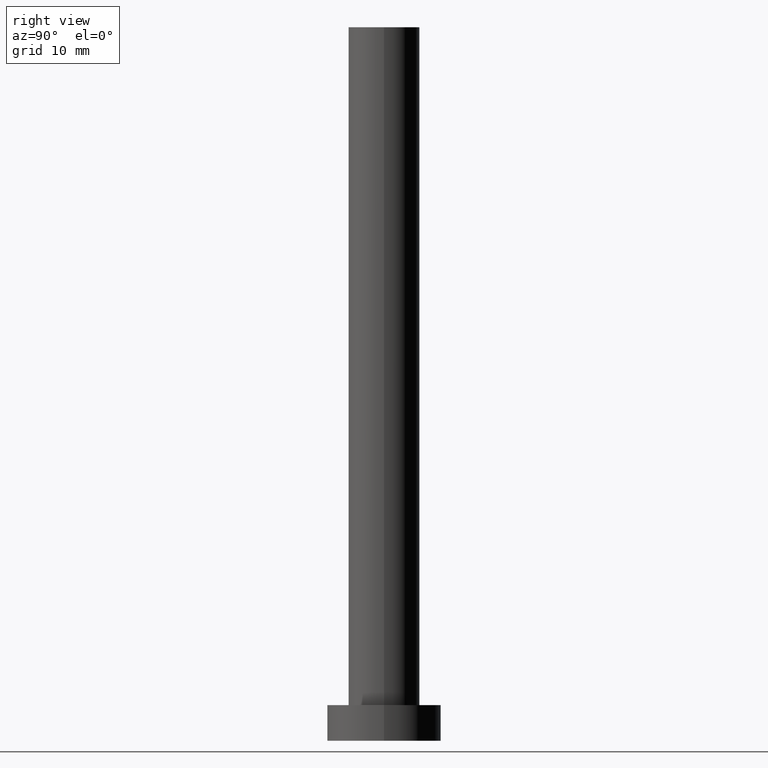
[diagram: clean part render]
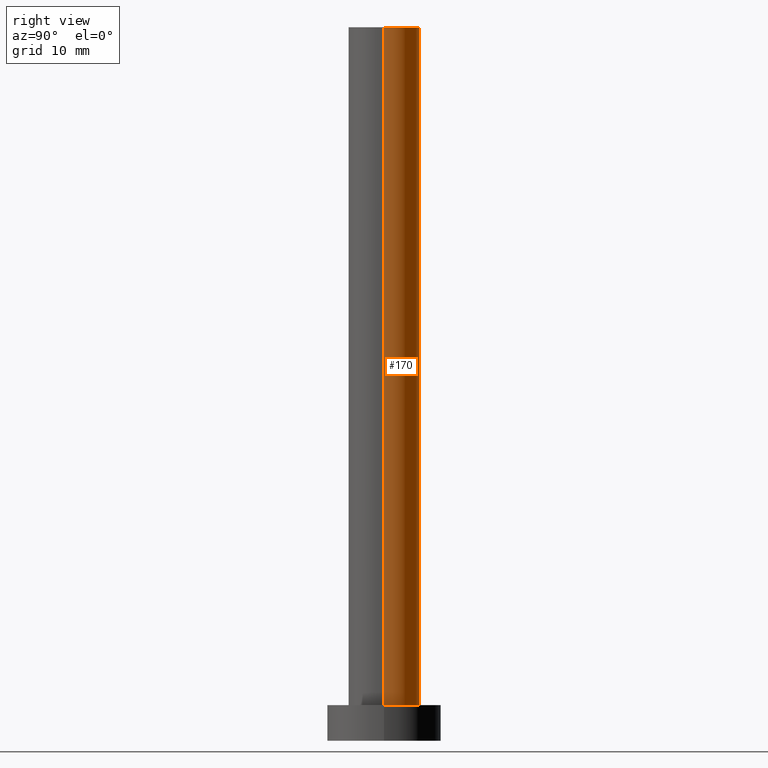
[diagram: same view with one face highlighted and labeled with its STEP entity id]
A machine part, right view. The second image highlights one B-rep face of the part: STEP entity #170.
In plain terms, the highlighted cylindrical surface (edge-blend (fillet) strip) has radius 5 mm, axis along (-0, -0, -1).
Its self-contained STEP definition (entity closure, byte-faithful):
#6 = DIRECTION ( 'NONE',  ( 1.000000000000000000, 0.000000000000000000, 0.000000000000000000 ) ) ;
#13 = DIRECTION ( 'NONE',  ( -0.000000000000000000, -0.000000000000000000, -1.000000000000000000 ) ) ;
#16 = CARTESIAN_POINT ( 'NONE',  ( 0.000000000000000000, 0.000000000000000000, 5.000000000000000000 ) ) ;
#17 = DIRECTION ( 'NONE',  ( -0.000000000000000000, -0.000000000000000000, -1.000000000000000000 ) ) ;
#18 = CARTESIAN_POINT ( 'NONE',  ( 5.000000000000000888, 6.123233995736767268E-16, 100.0000000000000000 ) ) ;
#31 = EDGE_CURVE ( 'NONE', #136, #216, #93, .T. ) ;
#33 = CYLINDRICAL_SURFACE ( 'NONE', #245, 5.000000000000000888 ) ;
#34 = ORIENTED_EDGE ( 'NONE', *, *, #211, .F. ) ;
#37 = ORIENTED_EDGE ( 'NONE', *, *, #217, .F. ) ;
#56 = AXIS2_PLACEMENT_3D ( 'NONE', #16, #95, #171 ) ;
#72 = ORIENTED_EDGE ( 'NONE', *, *, #183, .T. ) ;
#73 = CIRCLE ( 'NONE', #74, 5.000000000000000888 ) ;
#74 = AXIS2_PLACEMENT_3D ( 'NONE', #239, #125, #6 ) ;
#93 = LINE ( 'NONE', #18, #237 ) ;
#95 = DIRECTION ( 'NONE',  ( 0.000000000000000000, 0.000000000000000000, 1.000000000000000000 ) ) ;
#105 = CIRCLE ( 'NONE', #56, 5.000000000000000888 ) ;
#111 = CARTESIAN_POINT ( 'NONE',  ( 0.000000000000000000, 0.000000000000000000, 100.0000000000000000 ) ) ;
#113 = EDGE_LOOP ( 'NONE', ( #34, #191, #72, #37 ) ) ;
#123 = CARTESIAN_POINT ( 'NONE',  ( 5.000000000000000888, 6.123233995736767268E-16, 100.0000000000000000 ) ) ;
#125 = DIRECTION ( 'NONE',  ( 0.000000000000000000, 0.000000000000000000, 1.000000000000000000 ) ) ;
#136 = VERTEX_POINT ( 'NONE', #123 ) ;
#140 = VECTOR ( 'NONE', #148, 1000.000000000000000 ) ;
#143 = CARTESIAN_POINT ( 'NONE',  ( -5.000000000000000888, 0.000000000000000000, 100.0000000000000000 ) ) ;
#148 = DIRECTION ( 'NONE',  ( -0.000000000000000000, -0.000000000000000000, -1.000000000000000000 ) ) ;
#170 = ADVANCED_FACE ( 'NONE', ( #215 ), #33, .T. ) ;
#171 = DIRECTION ( 'NONE',  ( 1.000000000000000000, 0.000000000000000000, 0.000000000000000000 ) ) ;
#177 = LINE ( 'NONE', #219, #140 ) ;
#183 = EDGE_CURVE ( 'NONE', #216, #187, #105, .T. ) ;
#187 = VERTEX_POINT ( 'NONE', #249 ) ;
#188 = DIRECTION ( 'NONE',  ( -1.000000000000000000, 0.000000000000000000, 0.000000000000000000 ) ) ;
#191 = ORIENTED_EDGE ( 'NONE', *, *, #31, .T. ) ;
#198 = CARTESIAN_POINT ( 'NONE',  ( 5.000000000000000888, 6.123233995736767268E-16, 5.000000000000000000 ) ) ;
#208 = VERTEX_POINT ( 'NONE', #143 ) ;
#211 = EDGE_CURVE ( 'NONE', #136, #208, #73, .T. ) ;
#215 = FACE_OUTER_BOUND ( 'NONE', #113, .T. ) ;
#216 = VERTEX_POINT ( 'NONE', #198 ) ;
#217 = EDGE_CURVE ( 'NONE', #208, #187, #177, .T. ) ;
#219 = CARTESIAN_POINT ( 'NONE',  ( -5.000000000000000888, 0.000000000000000000, 100.0000000000000000 ) ) ;
#237 = VECTOR ( 'NONE', #17, 1000.000000000000000 ) ;
#239 = CARTESIAN_POINT ( 'NONE',  ( 0.000000000000000000, 0.000000000000000000, 100.0000000000000000 ) ) ;
#245 = AXIS2_PLACEMENT_3D ( 'NONE', #111, #13, #188 ) ;
#249 = CARTESIAN_POINT ( 'NONE',  ( -5.000000000000000888, 0.000000000000000000, 5.000000000000000000 ) ) ;